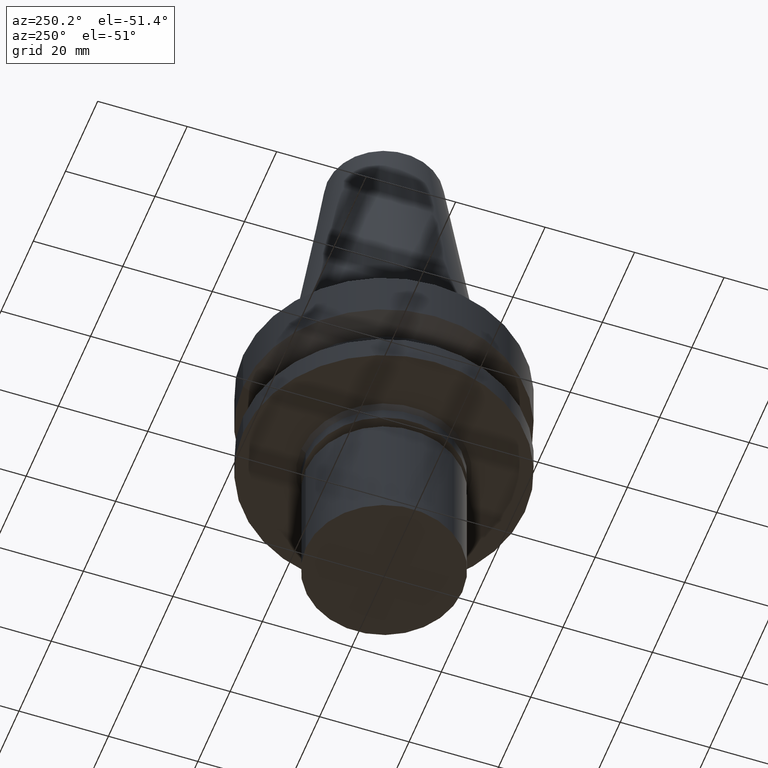
[diagram: clean part render]
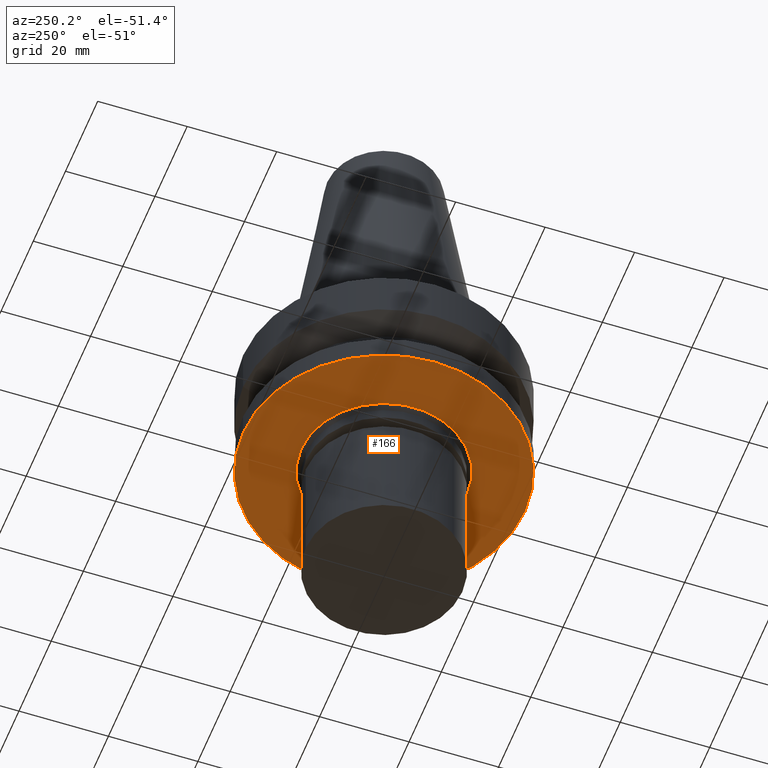
[diagram: same view with one face highlighted and labeled with its STEP entity id]
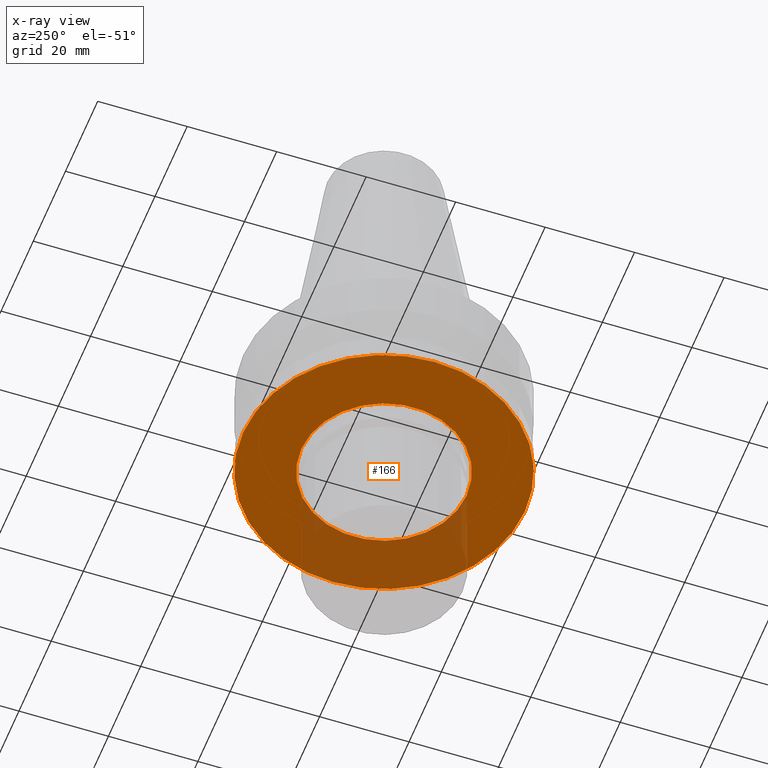
[diagram: x-ray of the same camera — body ghosted, the highlighted face saturated]
A machine part, auxiliary view. The second image highlights one B-rep face of the part: STEP entity #166.
The next image is the same camera in x-ray: the body ghosted, the highlighted face saturated — about 25% of this face is hidden behind the body in this view.
In plain terms, the highlighted planar face has unit normal (0, 0, -1).
Its self-contained STEP definition (entity closure, byte-faithful):
#115=EDGE_CURVE('Unnamed[1]',#264,#264,#265,.T.);
#166=ADVANCED_FACE('Unnamed[1]',(#340,#341),#342,.T.);
#171=EDGE_CURVE('Unnamed[1]',#349,#349,#350,.T.);
#264=VERTEX_POINT('',#455);
#265=CIRCLE('',#456,31.5000000000004);
#340=FACE_BOUND('',#551,.T.);
#341=FACE_OUTER_BOUND('',#552,.T.);
#342=PLANE('',#553);
#349=VERTEX_POINT('',#562);
#350=CIRCLE('',#563,18.4999999999998);
#455=CARTESIAN_POINT('',(1.65327317884891E-015,31.5000000000004,-26.9999999999998));
#456=AXIS2_PLACEMENT_3D('',#653,#654,#655);
#551=EDGE_LOOP('',(#734));
#552=EDGE_LOOP('',(#735));
#553=AXIS2_PLACEMENT_3D('',#736,#737,#738);
#562=CARTESIAN_POINT('',(1.65327317884891E-015,18.4999999999999,-26.9999999999998));
#563=AXIS2_PLACEMENT_3D('',#745,#746,#747);
#653=CARTESIAN_POINT('',(1.65327317884891E-015,2.70376128182853E-014,-26.9999999999997));
#654=DIRECTION('',(6.12323399573677E-017,-5.36731610657134E-016,-1.0));
#655=DIRECTION('',(2.80381797188541E-032,1.0,-5.36731610657134E-016));
#734=ORIENTED_EDGE('',*,*,#171,.F.);
#735=ORIENTED_EDGE('',*,*,#115,.T.);
#736=CARTESIAN_POINT('',(1.65327317884891E-015,25.0000000000001,-26.9999999999998));
#737=DIRECTION('',(6.12323399573677E-017,2.58203568831498E-015,-1.0));
#738=DIRECTION('',(-1.62931239779728E-031,1.0,2.58203568831498E-015));
#745=CARTESIAN_POINT('',(1.65327317884891E-015,2.70376128182852E-014,-26.9999999999998));
#746=DIRECTION('',(6.12323399573677E-017,-5.36731610657134E-016,-1.0));
#747=DIRECTION('',(2.80381797188541E-032,1.0,-5.36731610657134E-016));